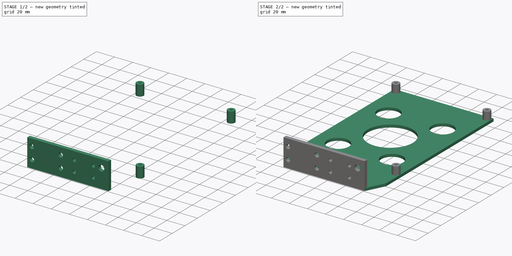
[diagram: build sequence overview — one tinted view per stage of 2, left to right]
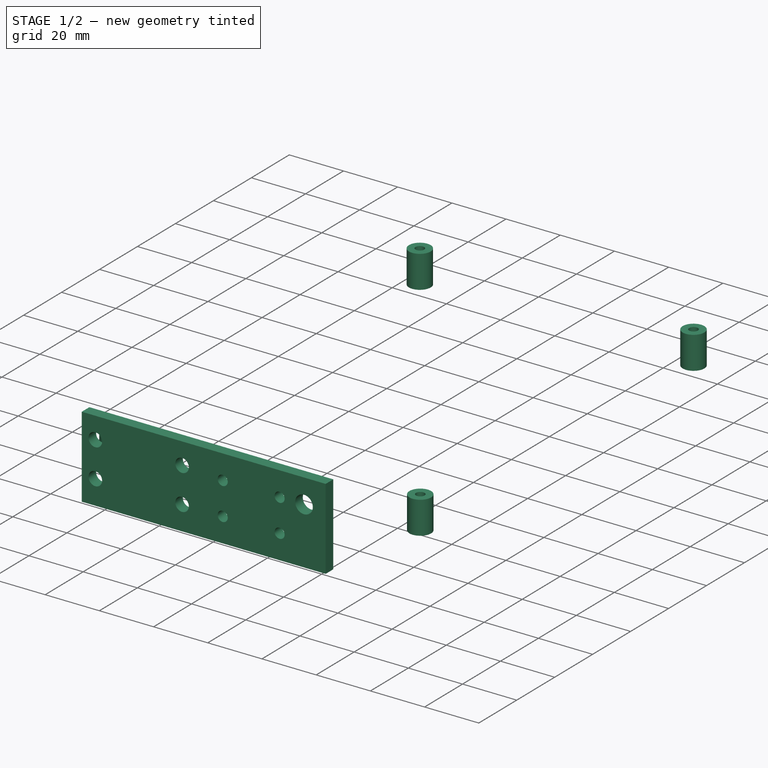
[diagram: stage 1 of 2 — iso view after this stage's code; geometry added in this stage tinted green]
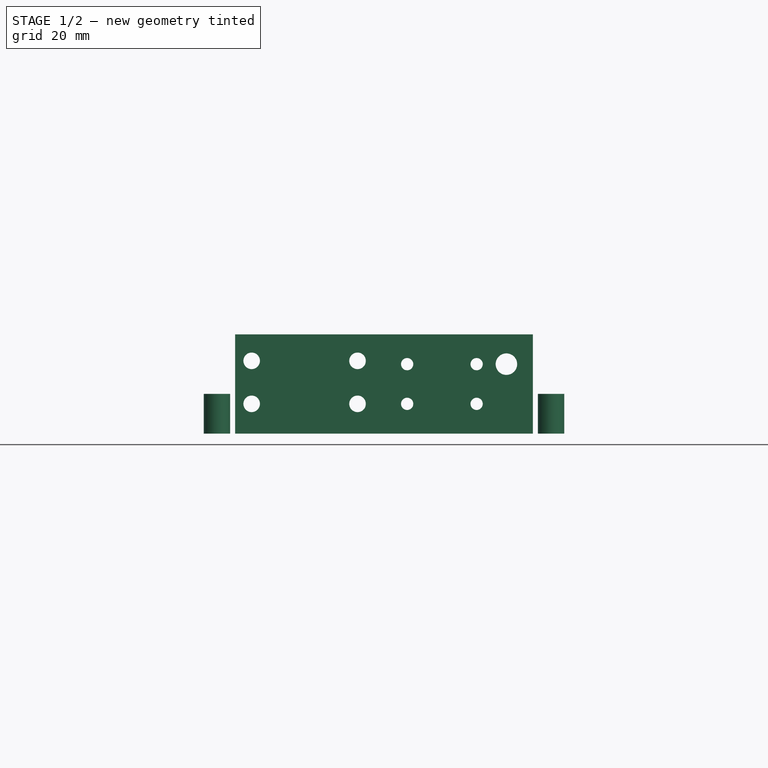
[diagram: stage 1 of 2 — front view after this stage's code; geometry added in this stage tinted green]
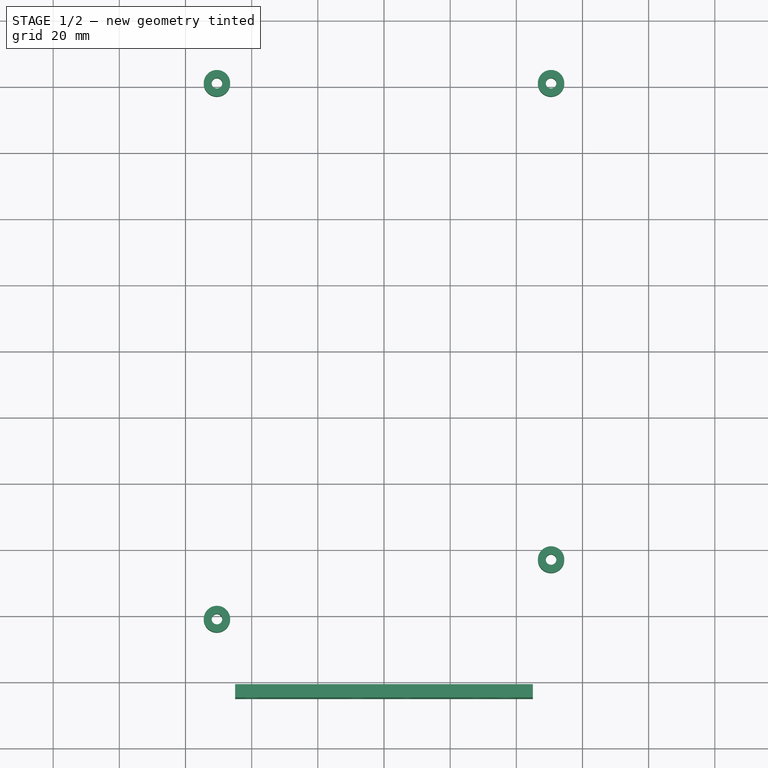
[diagram: stage 1 of 2 — top view after this stage's code; geometry added in this stage tinted green]
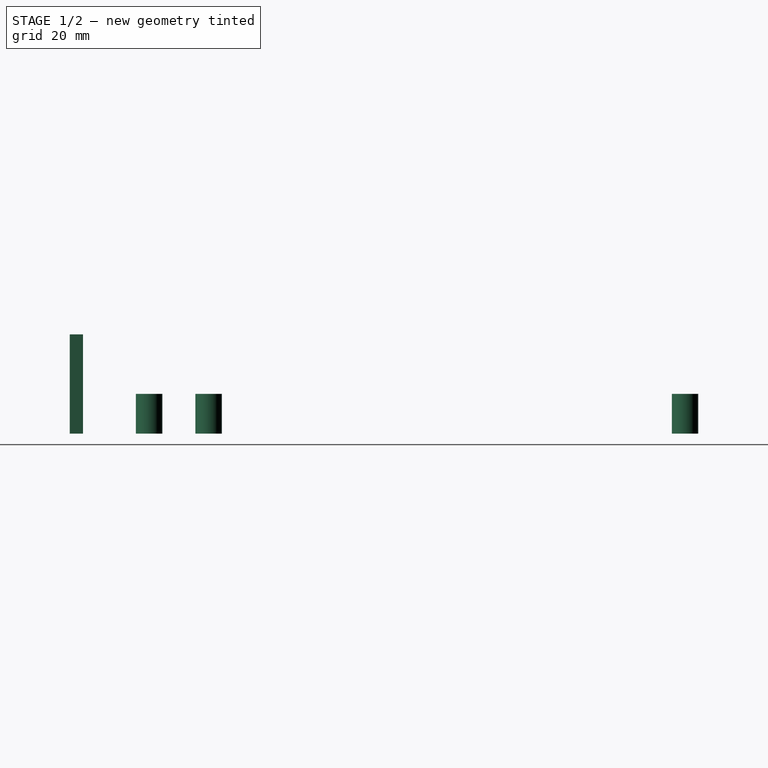
[diagram: stage 1 of 2 — right view after this stage's code; geometry added in this stage tinted green]
FCSTD DOCUMENT  (FreeCAD 0.16R6698 (Git))
Label: colibri-v1-frame
License: All rights reserved
LicenseURL: http://en.wikipedia.org/wiki/All_rights_reserved
objects: Sketcher::SketchObject×3, Part::Extrusion×3, Part::MultiFuse×1
note: 7 computed .brp shape members not serialized (recipe doc carries the construction recipe); baked Part::Feature solids carry a one-line shape summary decoded from their .brp

FEATURE [Sketcher::SketchObject] Sketch001
  sketch-geometry (13):
    g0: LineSegment [constr] StartX=-50.5 StartY=81 StartZ=0 EndX=50.5 EndY=81 EndZ=0
    g1: LineSegment [constr] StartX=50.5 StartY=81 StartZ=0 EndX=50.5 EndY=-81 EndZ=0
    g2: LineSegment [constr] StartX=50.5 StartY=-81 StartZ=0 EndX=-50.5 EndY=-81 EndZ=0
    g3: LineSegment [constr] StartX=-50.5 StartY=-81 StartZ=0 EndX=-50.5 EndY=81 EndZ=0
    g4: GeomPoint [constr] X=50.5 Y=-63 Z=0
    g5: Circle CenterX=-50.5 CenterY=-81 CenterZ=0 NormalX=0 NormalY=0 NormalZ=1 Radius=1.6
    g6: Circle CenterX=50.5 CenterY=-63 CenterZ=0 NormalX=0 NormalY=0 NormalZ=1 Radius=1.6
    g7: Circle CenterX=50.5 CenterY=81 CenterZ=0 NormalX=0 NormalY=0 NormalZ=1 Radius=1.6
    g8: Circle CenterX=-50.5 CenterY=81 CenterZ=0 NormalX=0 NormalY=0 NormalZ=1 Radius=1.6
    g9: Circle CenterX=-50.5 CenterY=-81 CenterZ=0 NormalX=0 NormalY=0 NormalZ=1 Radius=4
    g10: Circle CenterX=50.5 CenterY=-63 CenterZ=0 NormalX=0 NormalY=0 NormalZ=1 Radius=4
    g11: Circle CenterX=-50.5 CenterY=81 CenterZ=0 NormalX=0 NormalY=0 NormalZ=1 Radius=4
    g12: Circle CenterX=50.5 CenterY=81 CenterZ=0 NormalX=0 NormalY=0 NormalZ=1 Radius=4
  constraints (30):
    c: Coincident(g0,g1)
    c: Coincident(g1,g2)
    c: Coincident(g2,g3)
    c: Coincident(g3,g0)
    c: Horizontal(g0)
    c: Horizontal(g2)
    c: Vertical(g1)
    c: Vertical(g3)
    c: Symmetric(g0,g0,g-2)
    c: Symmetric(g0,g2,g-1)
    c: DistanceX(g0,g0) = 101
    c: DistanceY(g3,g3) = 162
    c: PointOnObject(g4,g1)
    c: DistanceY(g4,g0) = 144
    c: Coincident(g5,g2)
    c: Coincident(g6,g4)
    c: Coincident(g7,g0)
    c: Coincident(g8,g0)
    c: Radius(g8) = 1.6
    c: Equal(g8,g7)
    c: Equal(g8,g5)
    c: Equal(g8,g6)
    c: Coincident(g9,g2)
    c: Coincident(g10,g4)
    c: Coincident(g11,g0)
    c: Coincident(g12,g0)
    c: Equal(g11,g9)
    c: Equal(g9,g10)
    c: Equal(g10,g12)
    c: Radius(g11) = 4
FEATURE [Part::Extrusion] Extrude001
  Base = -> Sketch001
  Dir = (0,0,12)
  Solid = true
FEATURE [Sketcher::SketchObject] Sketch002
  Placement = pos=(0,0,0) rot=(1,0,0;1.5708rad)
  sketch-geometry (21):
    g0: LineSegment StartX=-45 StartY=0 StartZ=0 EndX=45 EndY=0 EndZ=0
    g1: LineSegment StartX=45 StartY=0 StartZ=0 EndX=45 EndY=30 EndZ=0
    g2: LineSegment StartX=45 StartY=30 StartZ=0 EndX=-45 EndY=30 EndZ=0
    g3: LineSegment StartX=-45 StartY=30 StartZ=0 EndX=-45 EndY=0 EndZ=0
    g4: LineSegment [constr] StartX=-40 StartY=22 StartZ=0 EndX=-8 EndY=22 EndZ=0
    g5: LineSegment [constr] StartX=-8 StartY=22 StartZ=0 EndX=-8 EndY=9 EndZ=0
    g6: LineSegment [constr] StartX=-8 StartY=9 StartZ=0 EndX=-40 EndY=9 EndZ=0
    g7: LineSegment [constr] StartX=-40 StartY=9 StartZ=0 EndX=-40 EndY=22 EndZ=0
    g8: Circle CenterX=-40 CenterY=9 CenterZ=0 NormalX=0 NormalY=0 NormalZ=1 Radius=2.5
    g9: Circle CenterX=-40 CenterY=22 CenterZ=0 NormalX=0 NormalY=0 NormalZ=1 Radius=2.5
    g10: Circle CenterX=-8 CenterY=22 CenterZ=0 NormalX=0 NormalY=0 NormalZ=1 Radius=2.5
    g11: Circle CenterX=-8 CenterY=9 CenterZ=0 NormalX=0 NormalY=0 NormalZ=1 Radius=2.5
    g12: LineSegment [constr] StartX=7 StartY=21 StartZ=0 EndX=28 EndY=21 EndZ=0
    g13: LineSegment [constr] StartX=28 StartY=21 StartZ=0 EndX=28 EndY=9 EndZ=0
    g14: LineSegment [constr] StartX=28 StartY=9 StartZ=0 EndX=7 EndY=9 EndZ=0
    g15: LineSegment [constr] StartX=7 StartY=9 StartZ=0 EndX=7 EndY=21 EndZ=0
    g16: Circle CenterX=7 CenterY=21 CenterZ=0 NormalX=0 NormalY=0 NormalZ=1 Radius=1.85
    g17: Circle CenterX=28 CenterY=21 CenterZ=0 NormalX=0 NormalY=0 NormalZ=1 Radius=1.85
    g18: Circle CenterX=7 CenterY=9 CenterZ=0 NormalX=0 NormalY=0 NormalZ=1 Radius=1.85
    g19: Circle CenterX=28 CenterY=9 CenterZ=0 NormalX=0 NormalY=0 NormalZ=1 Radius=1.85
    g20: Circle CenterX=37 CenterY=21 CenterZ=0 NormalX=0 NormalY=0 NormalZ=1 Radius=3.25
  constraints (55):
    c: Coincident(g0,g1)
    c: Coincident(g1,g2)
    c: Coincident(g2,g3)
    c: Coincident(g3,g0)
    c: Horizontal(g0)
    c: Horizontal(g2)
    c: Vertical(g1)
    c: Vertical(g3)
    c: PointOnObject(g0,g-1)
    c: Symmetric(g2,g1,g-2)
    c: DistanceX(g2,g2) = 90
    c: DistanceY(g1,g1) = 30
    c: Coincident(g4,g5)
    c: Coincident(g5,g6)
    c: Coincident(g6,g7)
    c: Coincident(g7,g4)
    c: Horizontal(g4)
    c: Horizontal(g6)
    c: Vertical(g5)
    c: Vertical(g7)
    c: DistanceX(g6,g6) = 32
    c: DistanceY(g7,g7) = 13
    c: DistanceX(g0,g6) = 5
    c: DistanceY(g0,g6) = 9
    c: Coincident(g8,g6)
    c: Coincident(g9,g4)
    c: Coincident(g10,g4)
    c: Radius(g8) = 2.5
    c: Equal(g8,g9)
    c: Equal(g8,g10)
    c: Equal(g8,g11)
    c: Coincident(g11,g5)
    c: Coincident(g12,g13)
    c: Coincident(g13,g14)
    c: Coincident(g14,g15)
    c: Coincident(g15,g12)
    c: Horizontal(g12)
    c: Horizontal(g14)
    c: Vertical(g13)
    c: Vertical(g15)
    c: PointOnObject(g14,g6)
    c: DistanceX(g14,g14) = 21
    c: DistanceY(g15,g15) = 12
    c: DistanceX(g5,g14) = 15
    c: Coincident(g16,g12)
    c: Coincident(g17,g12)
    c: Coincident(g18,g14)
    c: Coincident(g19,g13)
    c: Radius(g19) = 1.85
    c: Equal(g19,g18)
    c: Equal(g19,g16)
    c: Equal(g19,g17)
    c: Radius(g20) = 3.25
    c: DistanceX(g20,g0) = 8
    c: PointOnObject(g20,g12)
FEATURE [Part::Extrusion] Extrude002
  Base = -> Sketch002
  Dir = (0,4,0)
  Placement = pos=(0,-105,0) rot=(0,0,1;0rad)
  Solid = true
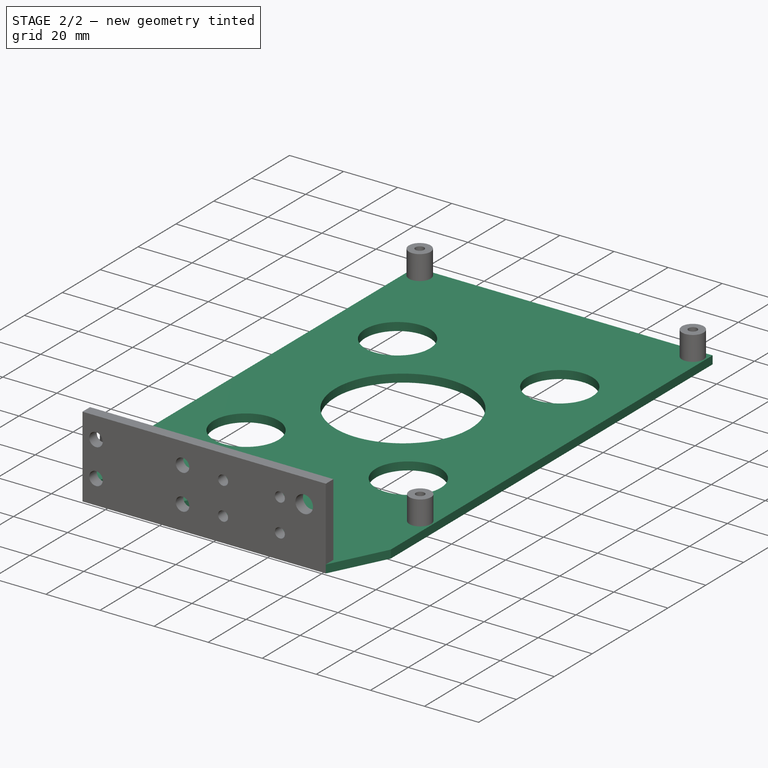
[diagram: stage 2 of 2 — iso view after this stage's code; geometry added in this stage tinted green]
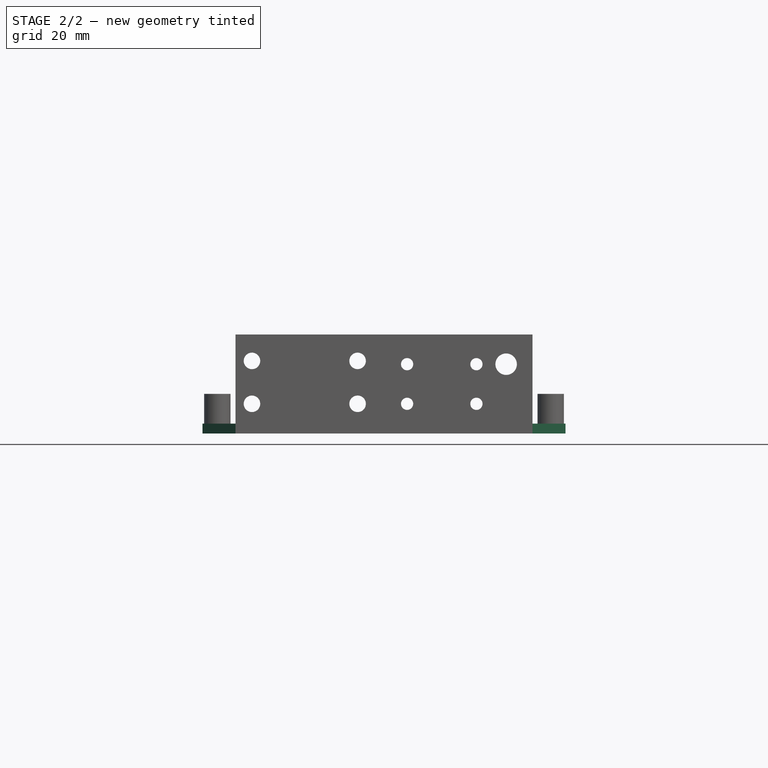
[diagram: stage 2 of 2 — front view after this stage's code; geometry added in this stage tinted green]
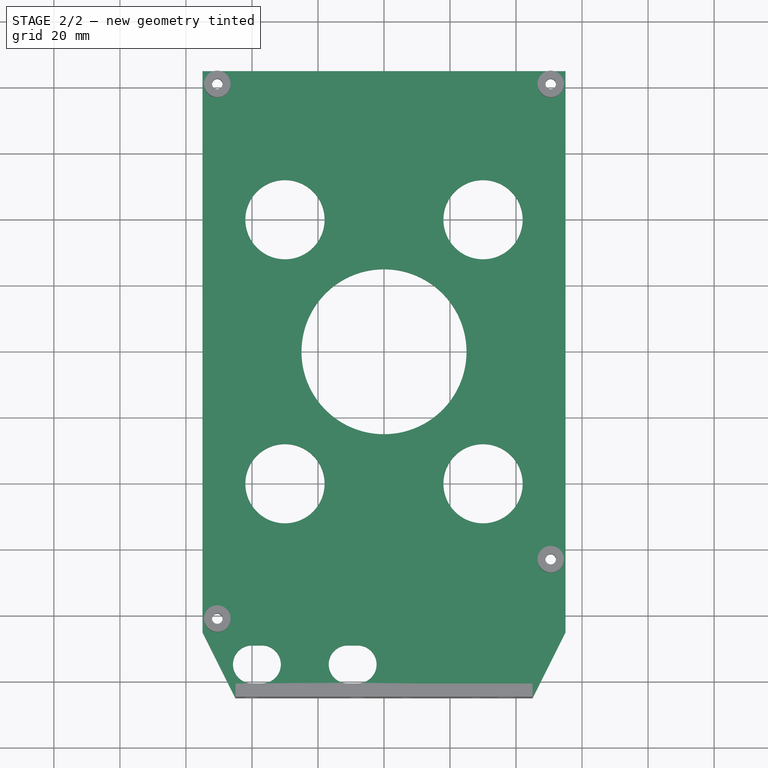
[diagram: stage 2 of 2 — top view after this stage's code; geometry added in this stage tinted green]
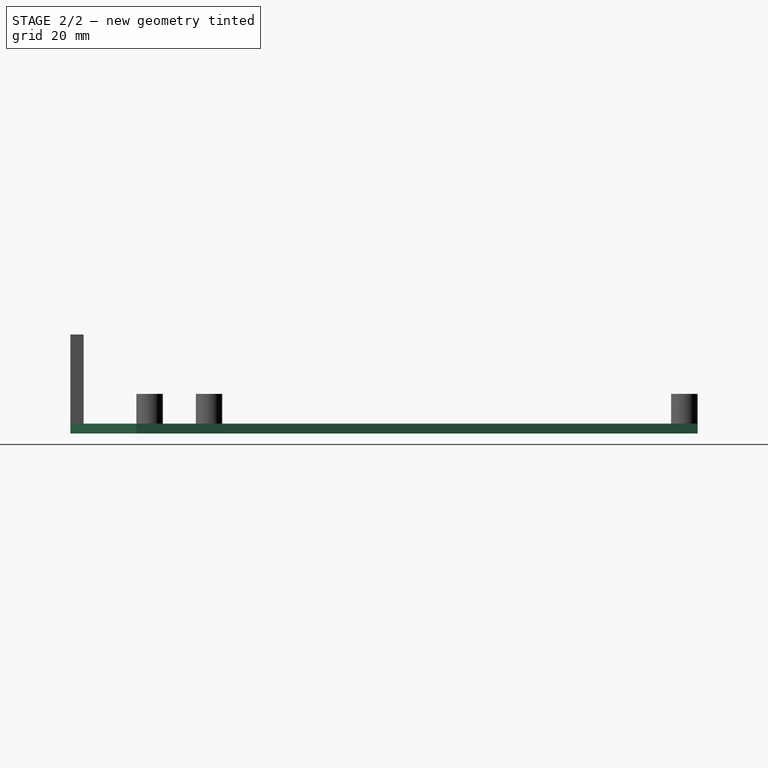
[diagram: stage 2 of 2 — right view after this stage's code; geometry added in this stage tinted green]
FEATURE [Sketcher::SketchObject] Sketch
  sketch-geometry (33):
    g0: LineSegment StartX=-55 StartY=85 StartZ=0 EndX=55 EndY=85 EndZ=0
    g1: LineSegment StartX=55 StartY=85 StartZ=0 EndX=55 EndY=-85 EndZ=0
    g2: LineSegment [constr] StartX=55 StartY=-85 StartZ=0 EndX=-55 EndY=-85 EndZ=0
    g3: LineSegment StartX=-55 StartY=-85 StartZ=0 EndX=-55 EndY=85 EndZ=0
    g4: LineSegment StartX=-55 StartY=-85 StartZ=0 EndX=-45 EndY=-105 EndZ=0
    g5: LineSegment StartX=-45 StartY=-105 StartZ=0 EndX=45 EndY=-105 EndZ=0
    g6: LineSegment StartX=45 StartY=-105 StartZ=0 EndX=55 EndY=-85 EndZ=0
    g7: LineSegment [constr] StartX=-50.5 StartY=81 StartZ=0 EndX=50.5 EndY=81 EndZ=0
    g8: LineSegment [constr] StartX=50.5 StartY=81 StartZ=0 EndX=50.5 EndY=-81 EndZ=0
    g9: LineSegment [constr] StartX=50.5 StartY=-81 StartZ=0 EndX=-50.5 EndY=-81 EndZ=0
    g10: LineSegment [constr] StartX=-50.5 StartY=-81 StartZ=0 EndX=-50.5 EndY=81 EndZ=0
    g11: GeomPoint [constr] X=50.5 Y=-63 Z=0
    g12: Circle CenterX=-50.5 CenterY=-81 CenterZ=0 NormalX=0 NormalY=0 NormalZ=1 Radius=1.9
    g13: Circle CenterX=50.5 CenterY=-63 CenterZ=0 NormalX=0 NormalY=0 NormalZ=1 Radius=1.9
    g14: Circle CenterX=50.5 CenterY=81 CenterZ=0 NormalX=0 NormalY=0 NormalZ=1 Radius=1.9
    g15: Circle CenterX=-50.5 CenterY=81 CenterZ=0 NormalX=0 NormalY=0 NormalZ=1 Radius=1.9
    g16: LineSegment [constr] StartX=-30 StartY=40 StartZ=0 EndX=30 EndY=40 EndZ=0
    g17: LineSegment [constr] StartX=30 StartY=40 StartZ=0 EndX=30 EndY=-40 EndZ=0
    g18: LineSegment [constr] StartX=30 StartY=-40 StartZ=0 EndX=-30 EndY=-40 EndZ=0
    g19: LineSegment [constr] StartX=-30 StartY=-40 StartZ=0 EndX=-30 EndY=40 EndZ=0
    g20: Circle CenterX=-30 CenterY=40 CenterZ=0 NormalX=0 NormalY=0 NormalZ=1 Radius=12
    g21: Circle CenterX=30 CenterY=40 CenterZ=0 NormalX=0 NormalY=0 NormalZ=1 Radius=12
    g22: Circle CenterX=30 CenterY=-40 CenterZ=0 NormalX=0 NormalY=0 NormalZ=1 Radius=12
    g23: Circle CenterX=-30 CenterY=-40 CenterZ=0 NormalX=0 NormalY=0 NormalZ=1 Radius=12
    g24: Circle CenterX=0 CenterY=0 CenterZ=0 NormalX=0 NormalY=0 NormalZ=1 Radius=25
    g25: ArcOfCircle CenterX=-40 CenterY=-94.75 CenterZ=0 NormalX=0 NormalY=0 NormalZ=1 Radius=5.75 StartAngle=1.5708 EndAngle=4.71239
    g26: ArcOfCircle CenterX=-37 CenterY=-94.75 CenterZ=0 NormalX=0 NormalY=0 NormalZ=1 Radius=5.75 StartAngle=4.71239 EndAngle=7.85398
    g27: LineSegment StartX=-40 StartY=-100.5 StartZ=0 EndX=-37 EndY=-100.5 EndZ=0
    g28: LineSegment StartX=-40 StartY=-89 StartZ=0 EndX=-37 EndY=-89 EndZ=0
    g29: ArcOfCircle CenterX=-11 CenterY=-94.75 CenterZ=0 NormalX=0 NormalY=0 NormalZ=1 Radius=5.75 StartAngle=1.5708 EndAngle=4.71239
    g30: ArcOfCircle CenterX=-8 CenterY=-94.75 CenterZ=0 NormalX=0 NormalY=0 NormalZ=1 Radius=5.75 StartAngle=4.71239 EndAngle=7.85398
    g31: LineSegment StartX=-11 StartY=-100.5 StartZ=0 EndX=-8 EndY=-100.5 EndZ=0
    g32: LineSegment StartX=-11 StartY=-89 StartZ=0 EndX=-8 EndY=-89 EndZ=0
  constraints (84):
    c: Coincident(g0,g1)
    c: Coincident(g1,g2)
    c: Coincident(g2,g3)
    c: Coincident(g3,g0)
    c: Horizontal(g0)
    c: Horizontal(g2)
    c: Vertical(g1)
    c: Vertical(g3)
    c: Symmetric(g0,g2,g-1)
    c: Symmetric(g2,g1,g-2)
    c: DistanceY(g3,g3) = 170
    c: DistanceX(g0,g0) = 110
    c: Coincident(g2,g4)
    c: Coincident(g4,g5)
    c: Horizontal(g5)
    c: Coincident(g5,g6)
    c: Coincident(g6,g1)
    c: Equal(g4,g6)
    c: DistanceY(g4,g2) = 20
    c: DistanceX(g5,g5) = 90
    c: Coincident(g7,g8)
    c: Coincident(g8,g9)
    c: Coincident(g9,g10)
    c: Coincident(g10,g7)
    c: Horizontal(g7)
    c: Horizontal(g9)
    c: Vertical(g8)
    c: Vertical(g10)
    c: Symmetric(g7,g7,g-2)
    c: Symmetric(g7,g9,g-1)
    c: DistanceX(g7,g7) = 101
    c: DistanceY(g10,g10) = 162
    c: PointOnObject(g11,g8)
    c: DistanceY(g11,g7) = 144
    c: Coincident(g12,g9)
    c: Coincident(g13,g11)
    c: Coincident(g14,g7)
    c: Coincident(g15,g7)
    c: Radius(g15) = 1.9
    c: Equal(g15,g14)
    c: Equal(g15,g12)
    c: Equal(g15,g13)
    c: Coincident(g16,g17)
    c: Coincident(g17,g18)
    c: Coincident(g18,g19)
    c: Coincident(g19,g16)
    c: Horizontal(g16)
    c: Horizontal(g18)
    c: Vertical(g17)
    c: Vertical(g19)
    c: Symmetric(g16,g18,g-1)
    c: Symmetric(g16,g16,g-2)
    c: DistanceY(g19,g19) = 80
    c: DistanceX(g16,g16) = 60
    c: Coincident(g21,g16)
    c: Coincident(g22,g17)
    c: Coincident(g23,g18)
    c: Coincident(g24,g-1)
    c: Radius(g23) = 12
    c: Equal(g23,g22)
    c: Equal(g23,g21)
    c: Equal(g23,g20)
    c: Radius(g24) = 25
    c: Coincident(g20,g16)
    c: Tangent(g25,g28) = 1.5708
    c: Tangent(g25,g27) = -1.5708
    c: Tangent(g27,g26) = -1.5708
    c: Tangent(g28,g26) = 1.5708
    c: Horizontal(g27)
    c: Equal(g25,g26)
    c: Radius(g26) = 5.75
    c: DistanceX(g27,g27) = 3
    c: DistanceX(g4,g25) = 5
    c: DistanceY(g4,g25) = 4.5
    c: Tangent(g29,g32) = 1.5708
    c: Tangent(g29,g31) = -1.5708
    c: Tangent(g31,g30) = -1.5708
    c: Tangent(g32,g30) = 1.5708
    c: Horizontal(g31)
    c: Equal(g29,g30)
    c: Equal(g29,g26)
    c: PointOnObject(g29,g27)
    c: Equal(g31,g27)
    c: DistanceX(g25,g30) = 32
FEATURE [Part::Extrusion] Extrude
  Base = -> Sketch
  Dir = (0,0,3)
  Solid = true
FEATURE [Part::MultiFuse] Fusion
  Shapes = -> [Extrude,Extrude001,Extrude002]
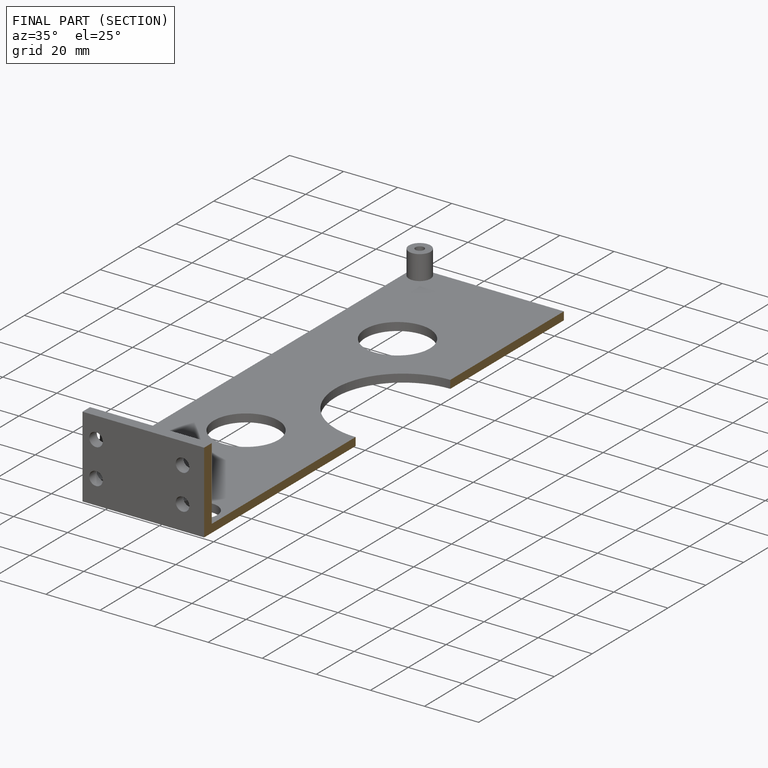
[diagram: finished part — half-section view (interior)]
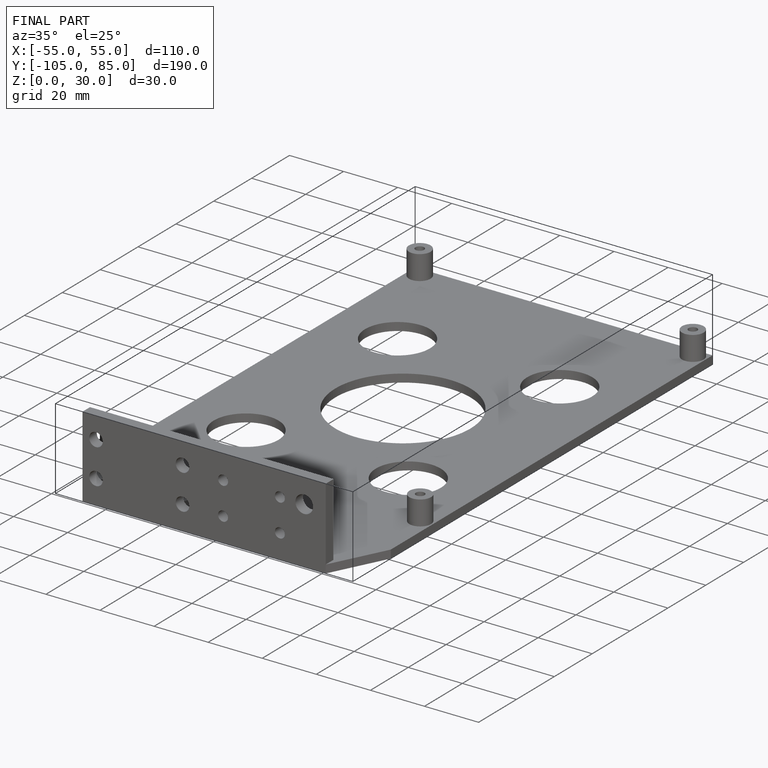
[diagram: finished part — iso view with bounding-box wireframe]
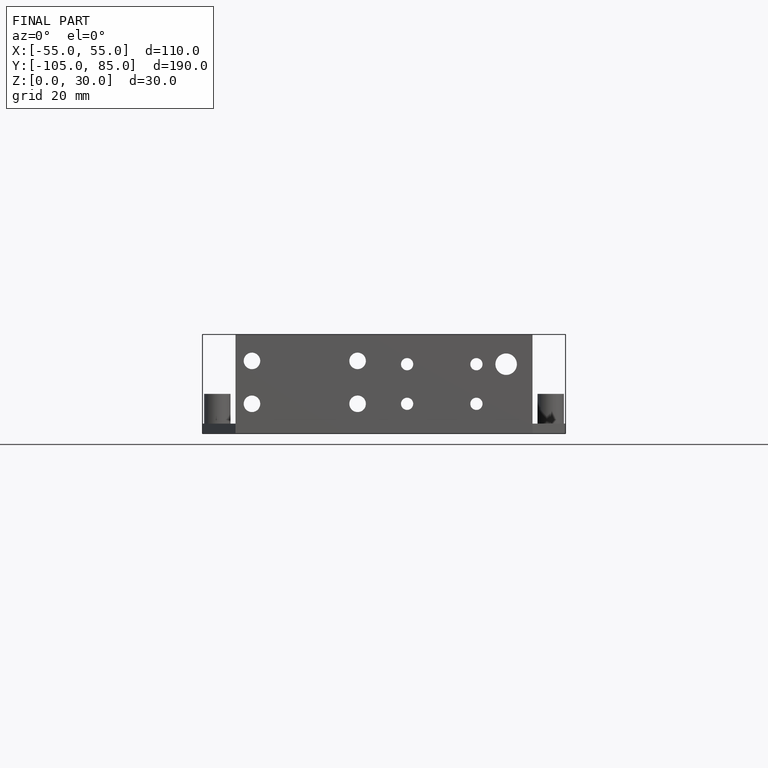
[diagram: finished part — front view with bounding-box wireframe]
